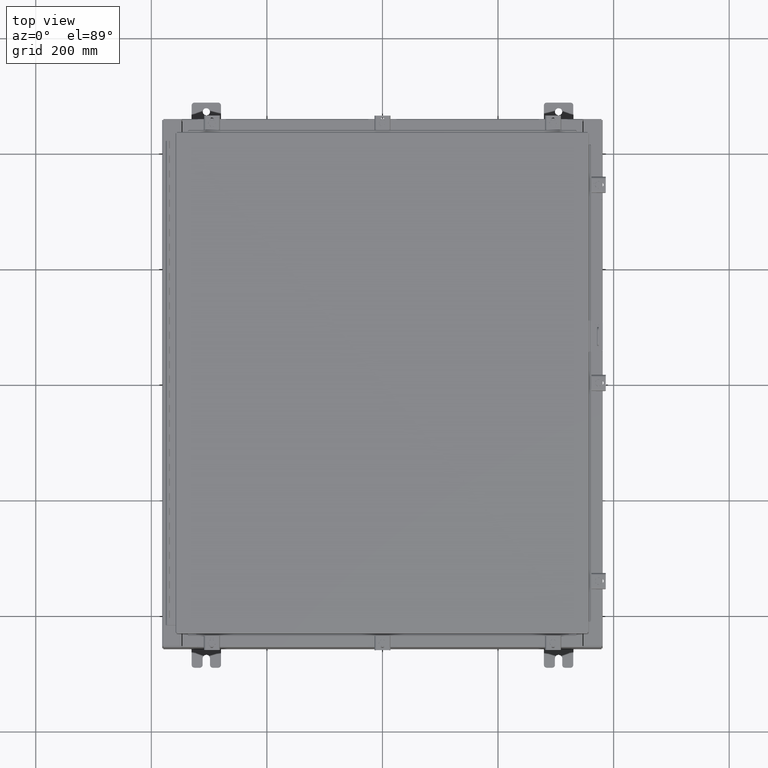
[diagram: clean part render]
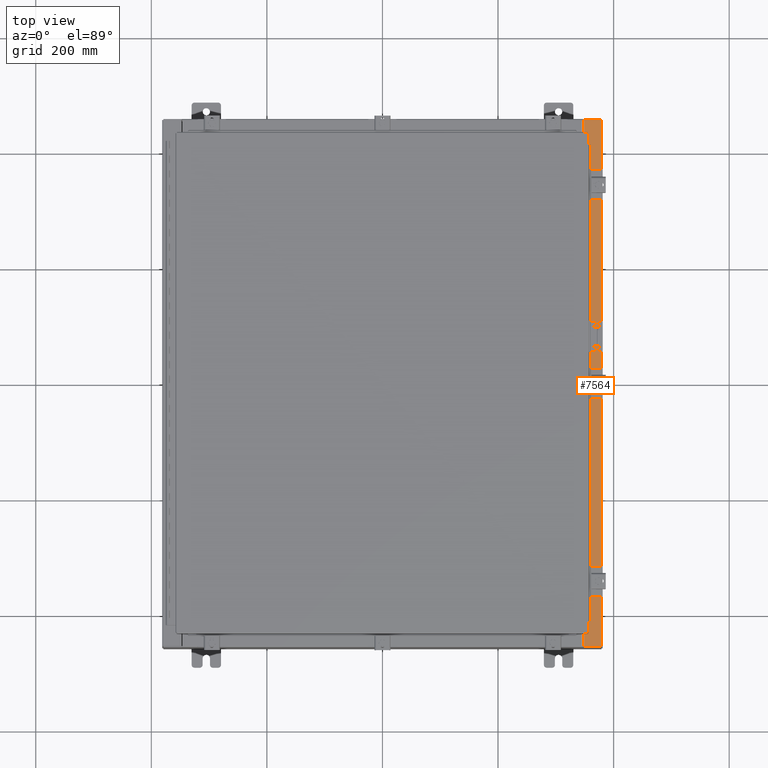
[diagram: same view with one face highlighted and labeled with its STEP entity id]
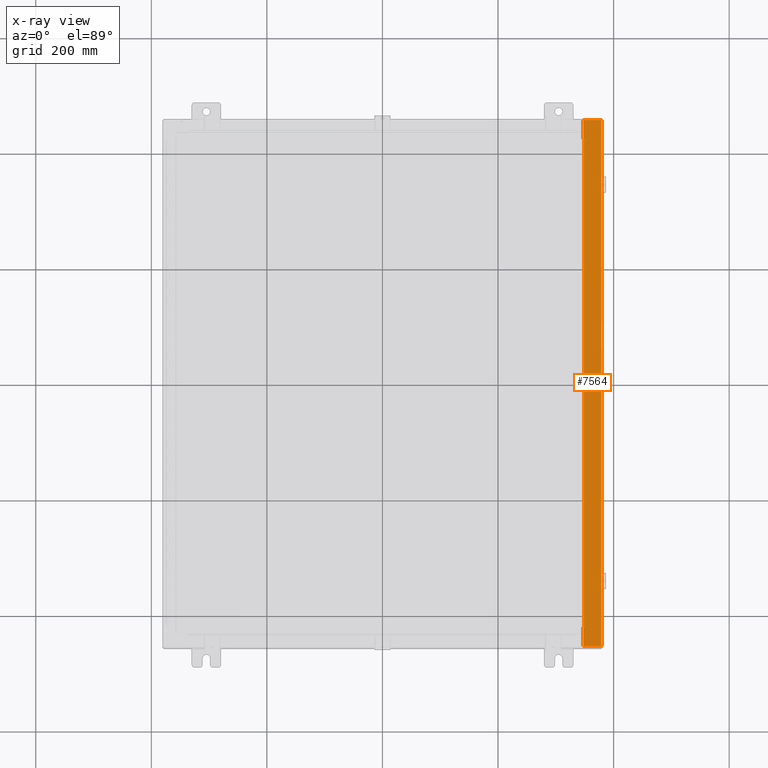
[diagram: x-ray of the same camera — body ghosted, the highlighted face saturated]
A machine part, top view. The second image highlights one B-rep face of the part: STEP entity #7564.
The next image is the same camera in x-ray: the body ghosted, the highlighted face saturated — about 0% of this face is hidden behind the body in this view.
In plain terms, the highlighted planar face has unit normal (-0, 0, -1).
Its self-contained STEP definition (entity closure, byte-faithful):
#140 = DIRECTION ( 'NONE',  ( -1.000000000000000000, 0.0000000000000000000, 6.241167087353087800E-015 ) ) ;
#173 = EDGE_CURVE ( 'NONE', #33639, #25740, #24539, .T. ) ;
#263 = CARTESIAN_POINT ( 'NONE',  ( 13.75005000000002800, -16.59375000000000000, 7.925300000000008900 ) ) ;
#647 = CARTESIAN_POINT ( 'NONE',  ( 13.71270000000003000, 16.59375000000000000, 7.925300000000008900 ) ) ;
#1883 = CARTESIAN_POINT ( 'NONE',  ( 13.75005000000002800, 16.63110000000000000, 7.925300000000006200 ) ) ;
#2087 = CARTESIAN_POINT ( 'NONE',  ( 13.69970000000002800, -16.63110000000000400, 7.925300000000008900 ) ) ;
#2102 = EDGE_CURVE ( 'NONE', #26135, #40196, #12137, .T. ) ;
#2741 = EDGE_CURVE ( 'NONE', #24088, #40196, #22704, .T. ) ;
#3173 = DIRECTION ( 'NONE',  ( -6.241167087353086200E-015, 0.0000000000000000000, -1.000000000000000000 ) ) ;
#3846 = CARTESIAN_POINT ( 'NONE',  ( 13.69970000000002800, -16.63110000000000400, 7.925300000000007100 ) ) ;
#4113 = VERTEX_POINT ( 'NONE', #14641 ) ;
#4891 = DIRECTION ( 'NONE',  ( -2.156899250920150100E-031, -1.000000000000000000, 1.346156861557936900E-045 ) ) ;
#5326 = VERTEX_POINT ( 'NONE', #18880 ) ;
#5637 = ORIENTED_EDGE ( 'NONE', *, *, #173, .F. ) ;
#6392 = CARTESIAN_POINT ( 'NONE',  ( 4.972393517345230000E-014, 0.0000000000000000000, 7.925300000000092400 ) ) ;
#7209 = VECTOR ( 'NONE', #4891, 39.37007874015748100 ) ;
#7409 = DIRECTION ( 'NONE',  ( 1.000000000000000000, 0.0000000000000000000, 0.0000000000000000000 ) ) ;
#7516 = CARTESIAN_POINT ( 'NONE',  ( 13.71270000000003000, -16.59375000000000000, 7.925300000000008900 ) ) ;
#7564 = ADVANCED_FACE ( 'NONE', ( #43013 ), #16631, .F. ) ;
#7730 = CARTESIAN_POINT ( 'NONE',  ( 4.972393517345230000E-014, -17.92530000000000000, 7.925300000000092400 ) ) ;
#8467 = EDGE_CURVE ( 'NONE', #14560, #27803, #25017, .T. ) ;
#8655 = ORIENTED_EDGE ( 'NONE', *, *, #36440, .F. ) ;
#8919 = ORIENTED_EDGE ( 'NONE', *, *, #12306, .F. ) ;
#9247 = AXIS2_PLACEMENT_3D ( 'NONE', #36208, #16003, #39621 ) ;
#10677 = DIRECTION ( 'NONE',  ( 6.241167087353086200E-015, 0.0000000000000000000, 1.000000000000000000 ) ) ;
#11465 = ORIENTED_EDGE ( 'NONE', *, *, #34628, .T. ) ;
#12121 = VECTOR ( 'NONE', #140, 39.37007874015748100 ) ;
#12137 = LINE ( 'NONE', #7730, #38061 ) ;
#12306 = EDGE_CURVE ( 'NONE', #5326, #33639, #14550, .T. ) ;
#13631 = CARTESIAN_POINT ( 'NONE',  ( 13.75005000000002800, 16.63110000000000000, 7.925300000000008900 ) ) ;
#14420 = EDGE_CURVE ( 'NONE', #4113, #19517, #34729, .T. ) ;
#14529 = DIRECTION ( 'NONE',  ( 1.000000000000000000, 2.717614574405843200E-032, -6.241167087353087800E-015 ) ) ;
#14547 = ORIENTED_EDGE ( 'NONE', *, *, #32229, .T. ) ;
#14550 = LINE ( 'NONE', #647, #39354 ) ;
#14560 = VERTEX_POINT ( 'NONE', #43752 ) ;
#14641 = CARTESIAN_POINT ( 'NONE',  ( 13.75005000000002800, -16.63110000000000000, 7.925300000000006200 ) ) ;
#15162 = CARTESIAN_POINT ( 'NONE',  ( 13.75005000000002800, -16.59375000000000000, 7.925300000000006200 ) ) ;
#15505 = LINE ( 'NONE', #21784, #7209 ) ;
#15540 = CARTESIAN_POINT ( 'NONE',  ( 13.71270000000003000, -16.59375000000000000, 7.925300000000008900 ) ) ;
#16003 = DIRECTION ( 'NONE',  ( 6.241167087353086200E-015, 0.0000000000000000000, 1.000000000000000000 ) ) ;
#16631 = PLANE ( 'NONE',  #39391 ) ;
#18880 = CARTESIAN_POINT ( 'NONE',  ( 13.71270000000003000, 16.59375000000000000, 7.925300000000008900 ) ) ;
#18899 = VERTEX_POINT ( 'NONE', #7516 ) ;
#19517 = VERTEX_POINT ( 'NONE', #15162 ) ;
#19968 = CARTESIAN_POINT ( 'NONE',  ( 14.91230000000002700, -17.92530000000000000, 7.925300000000000000 ) ) ;
#20401 = CARTESIAN_POINT ( 'NONE',  ( 4.972393517345230000E-014, 17.92530000000000000, 7.925300000000092400 ) ) ;
#21356 = EDGE_CURVE ( 'NONE', #25740, #27803, #39765, .T. ) ;
#21649 = VECTOR ( 'NONE', #41471, 39.37007874015748100 ) ;
#21784 = CARTESIAN_POINT ( 'NONE',  ( 13.69970000000002800, 0.0000000000000000000, 7.925300000000007100 ) ) ;
#22147 = VECTOR ( 'NONE', #35761, 39.37007874015748100 ) ;
#22501 = ORIENTED_EDGE ( 'NONE', *, *, #8467, .T. ) ;
#22682 = EDGE_LOOP ( 'NONE', ( #41435, #11465, #32784, #28120, #14547, #22501, #31683, #5637, #8919, #8655, #34571, #26767 ) ) ;
#22704 = LINE ( 'NONE', #38099, #21649 ) ;
#23040 = CARTESIAN_POINT ( 'NONE',  ( 13.69970000000002800, 16.63110000000000400, 7.925300000000007100 ) ) ;
#23828 = DIRECTION ( 'NONE',  ( -1.000000000000000000, 4.340572780399910900E-014, 0.0000000000000000000 ) ) ;
#23896 = DIRECTION ( 'NONE',  ( -1.000000000000000000, 0.0000000000000000000, 0.0000000000000000000 ) ) ;
#24088 = VERTEX_POINT ( 'NONE', #35452 ) ;
#24539 = CIRCLE ( 'NONE', #37896, 0.01867499999999949400 ) ;
#25017 = LINE ( 'NONE', #28763, #41886 ) ;
#25740 = VERTEX_POINT ( 'NONE', #1883 ) ;
#26135 = VERTEX_POINT ( 'NONE', #31145 ) ;
#26767 = ORIENTED_EDGE ( 'NONE', *, *, #14420, .F. ) ;
#26817 = DIRECTION ( 'NONE',  ( -1.000000000000000000, 0.0000000000000000000, 6.241167087353086200E-015 ) ) ;
#27393 = VERTEX_POINT ( 'NONE', #3846 ) ;
#27803 = VERTEX_POINT ( 'NONE', #23040 ) ;
#28010 = LINE ( 'NONE', #20401, #12121 ) ;
#28120 = ORIENTED_EDGE ( 'NONE', *, *, #2741, .F. ) ;
#28666 = VECTOR ( 'NONE', #23828, 39.37007874015748100 ) ;
#28763 = CARTESIAN_POINT ( 'NONE',  ( 13.69970000000002800, 0.0000000000000000000, 7.925300000000007100 ) ) ;
#29235 = VECTOR ( 'NONE', #39147, 39.37007874015748100 ) ;
#30911 = CARTESIAN_POINT ( 'NONE',  ( 13.75005000000002800, 16.61242500000000200, 7.925300000000008900 ) ) ;
#31145 = CARTESIAN_POINT ( 'NONE',  ( 13.69970000000002800, -17.92530000000000000, 7.925300000000007100 ) ) ;
#31683 = ORIENTED_EDGE ( 'NONE', *, *, #21356, .F. ) ;
#31740 = CARTESIAN_POINT ( 'NONE',  ( 13.75005000000002800, 16.59375000000000000, 7.925300000000006200 ) ) ;
#32091 = VECTOR ( 'NONE', #23896, 39.37007874015748100 ) ;
#32154 = DIRECTION ( 'NONE',  ( -2.156899250920150100E-031, -1.000000000000000000, 1.346156861557936900E-045 ) ) ;
#32229 = EDGE_CURVE ( 'NONE', #24088, #14560, #28010, .T. ) ;
#32784 = ORIENTED_EDGE ( 'NONE', *, *, #2102, .T. ) ;
#33129 = EDGE_CURVE ( 'NONE', #27393, #4113, #37965, .T. ) ;
#33639 = VERTEX_POINT ( 'NONE', #31740 ) ;
#34312 = DIRECTION ( 'NONE',  ( 1.000000000000000000, 0.0000000000000000000, 0.0000000000000000000 ) ) ;
#34571 = ORIENTED_EDGE ( 'NONE', *, *, #40945, .F. ) ;
#34628 = EDGE_CURVE ( 'NONE', #27393, #26135, #15505, .T. ) ;
#34729 = CIRCLE ( 'NONE', #9247, 0.01867499999999949400 ) ;
#35452 = CARTESIAN_POINT ( 'NONE',  ( 14.91230000000002700, 17.92530000000000000, 7.925300000000000000 ) ) ;
#35761 = DIRECTION ( 'NONE',  ( 1.000000000000000000, 4.340572780399910900E-014, 0.0000000000000000000 ) ) ;
#36208 = CARTESIAN_POINT ( 'NONE',  ( 13.75005000000002800, -16.61242500000000200, 7.925300000000008900 ) ) ;
#36440 = EDGE_CURVE ( 'NONE', #18899, #5326, #38227, .T. ) ;
#37896 = AXIS2_PLACEMENT_3D ( 'NONE', #30911, #10677, #34312 ) ;
#37965 = LINE ( 'NONE', #2087, #22147 ) ;
#38061 = VECTOR ( 'NONE', #14529, 39.37007874015748100 ) ;
#38099 = CARTESIAN_POINT ( 'NONE',  ( 14.91230000000002700, -17.92530000000000000, 7.925300000000000000 ) ) ;
#38227 = LINE ( 'NONE', #15540, #29235 ) ;
#39147 = DIRECTION ( 'NONE',  ( -0.0000000000000000000, 1.000000000000000000, -0.0000000000000000000 ) ) ;
#39354 = VECTOR ( 'NONE', #7409, 39.37007874015748100 ) ;
#39391 = AXIS2_PLACEMENT_3D ( 'NONE', #6392, #3173, #26817 ) ;
#39621 = DIRECTION ( 'NONE',  ( 1.000000000000000000, 0.0000000000000000000, 0.0000000000000000000 ) ) ;
#39765 = LINE ( 'NONE', #13631, #28666 ) ;
#40027 = LINE ( 'NONE', #263, #32091 ) ;
#40196 = VERTEX_POINT ( 'NONE', #19968 ) ;
#40945 = EDGE_CURVE ( 'NONE', #19517, #18899, #40027, .T. ) ;
#41435 = ORIENTED_EDGE ( 'NONE', *, *, #33129, .F. ) ;
#41471 = DIRECTION ( 'NONE',  ( -0.0000000000000000000, -1.000000000000000000, -0.0000000000000000000 ) ) ;
#41886 = VECTOR ( 'NONE', #32154, 39.37007874015748100 ) ;
#43013 = FACE_OUTER_BOUND ( 'NONE', #22682, .T. ) ;
#43752 = CARTESIAN_POINT ( 'NONE',  ( 13.69970000000002800, 17.92530000000000000, 7.925300000000007100 ) ) ;